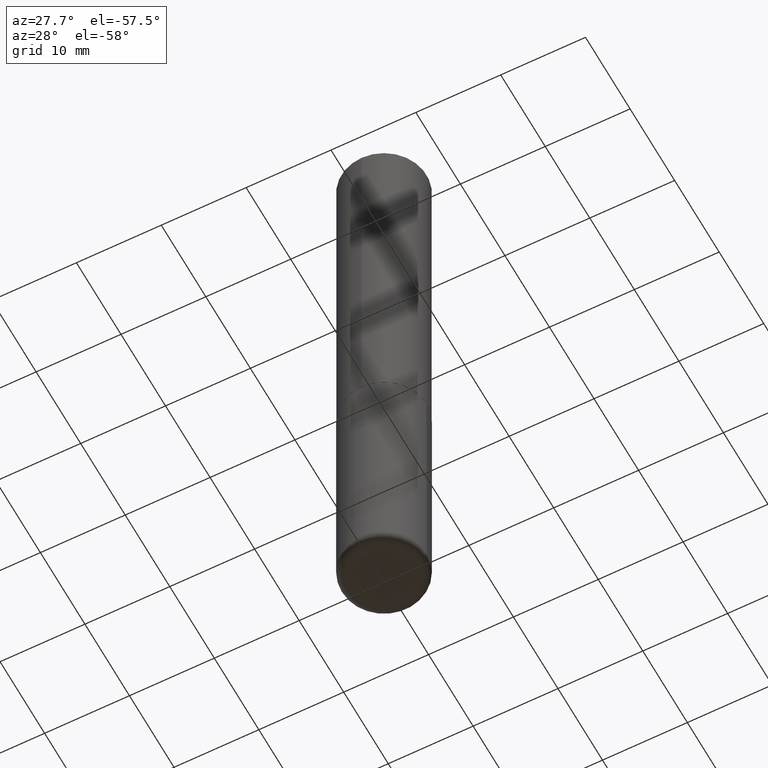
[diagram: clean part render]
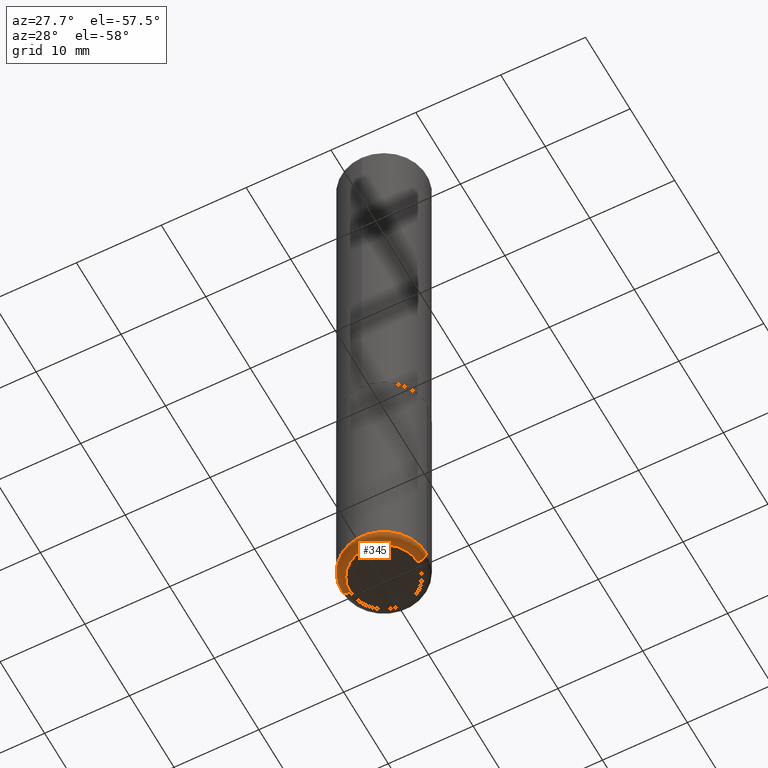
[diagram: same view with one face highlighted and labeled with its STEP entity id]
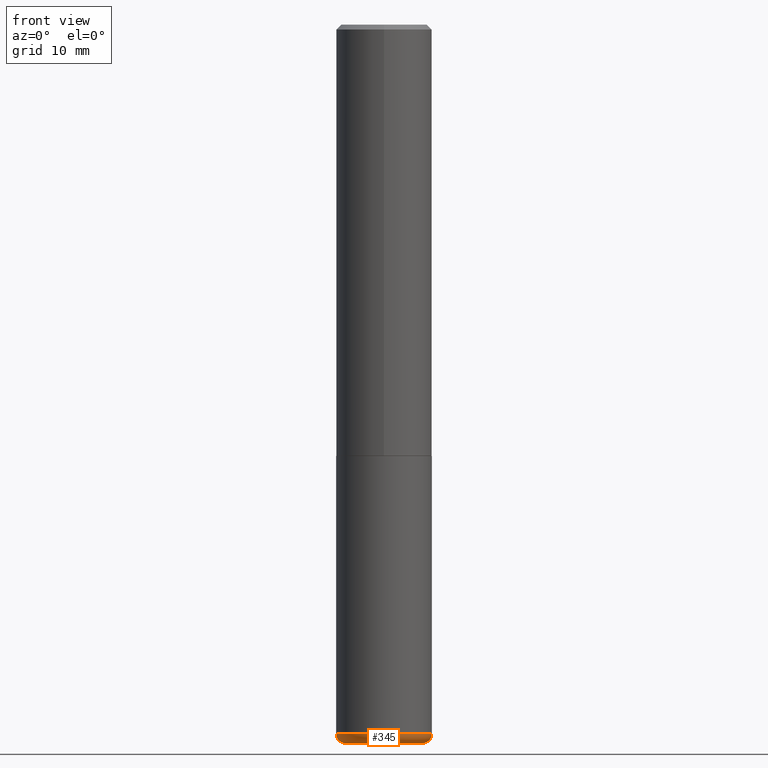
[diagram: same view with one face highlighted and labeled with its STEP entity id]
A machine part, auxiliary view. The second image highlights one B-rep face of the part: STEP entity #345.
A second angle (front view) of the same face is appended — the face is thin or edge-on in the first view.
In plain terms, the highlighted toroidal blend (fillet) surface has major radius 3.9992 mm and minor (blend) radius 1.0008 mm.
Its self-contained STEP definition (entity closure, byte-faithful):
#12 = CARTESIAN_POINT ( 'NONE',  ( 0.1968500000000000805, -1.154667793568816250E-14, -2.913399999999999768 ) ) ;
#13 = CARTESIAN_POINT ( 'NONE',  ( -0.1574500000000000066, -9.053332195131342510E-15, -2.913399999999999768 ) ) ;
#16 = EDGE_LOOP ( 'NONE', ( #146, #401, #181, #184 ) ) ;
#32 = AXIS2_PLACEMENT_3D ( 'NONE', #45, #174, #303 ) ;
#35 = CARTESIAN_POINT ( 'NONE',  ( 7.220980290903470182E-29, -1.030964609733603853E-14, -2.952799999999999869 ) ) ;
#40 = CIRCLE ( 'NONE', #219, 0.03940000000000009467 ) ;
#43 = DIRECTION ( 'NONE',  ( -1.000000000000000000, 7.105427357601008170E-15, 0.000000000000000000 ) ) ;
#45 = CARTESIAN_POINT ( 'NONE',  ( 7.124628819939776708E-29, -1.017208173258561931E-14, -2.913399999999999768 ) ) ;
#54 = CIRCLE ( 'NONE', #371, 0.1574500000000000066 ) ;
#75 = DIRECTION ( 'NONE',  ( 1.000000000000000000, -6.982962677686266711E-15, 0.000000000000000000 ) ) ;
#98 = CARTESIAN_POINT ( 'NONE',  ( -0.1574500000000000066, -8.982137458561812020E-15, -2.952799999999999869 ) ) ;
#114 = CARTESIAN_POINT ( 'NONE',  ( 7.124628819939776708E-29, -1.017208173258561931E-14, -2.913399999999999768 ) ) ;
#121 = AXIS2_PLACEMENT_3D ( 'NONE', #114, #247, #75 ) ;
#146 = ORIENTED_EDGE ( 'NONE', *, *, #293, .F. ) ;
#167 = DIRECTION ( 'NONE',  ( -6.982962677686266711E-15, -1.000000000000000000, 3.491481338843145583E-15 ) ) ;
#168 = CARTESIAN_POINT ( 'NONE',  ( 0.1574500000000000066, -1.127154920618732249E-14, -2.913399999999999768 ) ) ;
#174 = DIRECTION ( 'NONE',  ( -2.445468806185136597E-29, 3.491481338843145583E-15, 1.000000000000000000 ) ) ;
#175 = FACE_OUTER_BOUND ( 'NONE', #16, .T. ) ;
#176 = VERTEX_POINT ( 'NONE', #302 ) ;
#178 = EDGE_CURVE ( 'NONE', #176, #362, #40, .T. ) ;
#181 = ORIENTED_EDGE ( 'NONE', *, *, #178, .T. ) ;
#184 = ORIENTED_EDGE ( 'NONE', *, *, #258, .F. ) ;
#192 = CIRCLE ( 'NONE', #121, 0.1968500000000000527 ) ;
#202 = CIRCLE ( 'NONE', #336, 0.03940000000000009467 ) ;
#219 = AXIS2_PLACEMENT_3D ( 'NONE', #168, #167, #237 ) ;
#237 = DIRECTION ( 'NONE',  ( 1.000000000000000000, -6.982962677686261189E-15, 0.000000000000000000 ) ) ;
#247 = DIRECTION ( 'NONE',  ( -2.445468806185136597E-29, 3.491481338843145583E-15, 1.000000000000000000 ) ) ;
#258 = EDGE_CURVE ( 'NONE', #349, #362, #192, .T. ) ;
#271 = TOROIDAL_SURFACE ( 'NONE', #32, 0.1574500000000000066, 0.03940000000000008079 ) ;
#275 = DIRECTION ( 'NONE',  ( 7.105427357601001859E-15, 1.000000000000000000, -3.491481338843145583E-15 ) ) ;
#293 = EDGE_CURVE ( 'NONE', #374, #349, #202, .T. ) ;
#302 = CARTESIAN_POINT ( 'NONE',  ( 0.1574500000000000066, -1.140911357093774171E-14, -2.952799999999999869 ) ) ;
#303 = DIRECTION ( 'NONE',  ( 1.000000000000000000, -6.982962677686264344E-15, 4.883557194083112340E-29 ) ) ;
#336 = AXIS2_PLACEMENT_3D ( 'NONE', #13, #275, #43 ) ;
#345 = ADVANCED_FACE ( 'NONE', ( #175 ), #271, .T. ) ;
#349 = VERTEX_POINT ( 'NONE', #400 ) ;
#361 = DIRECTION ( 'NONE',  ( 1.000000000000000000, -6.982962677686265922E-15, 0.000000000000000000 ) ) ;
#362 = VERTEX_POINT ( 'NONE', #12 ) ;
#369 = DIRECTION ( 'NONE',  ( -2.445468806185136597E-29, 3.491481338843145583E-15, 1.000000000000000000 ) ) ;
#371 = AXIS2_PLACEMENT_3D ( 'NONE', #35, #369, #361 ) ;
#374 = VERTEX_POINT ( 'NONE', #98 ) ;
#396 = EDGE_CURVE ( 'NONE', #374, #176, #54, .T. ) ;
#400 = CARTESIAN_POINT ( 'NONE',  ( -0.1968500000000000805, -8.773378357241862315E-15, -2.913399999999999768 ) ) ;
#401 = ORIENTED_EDGE ( 'NONE', *, *, #396, .T. ) ;